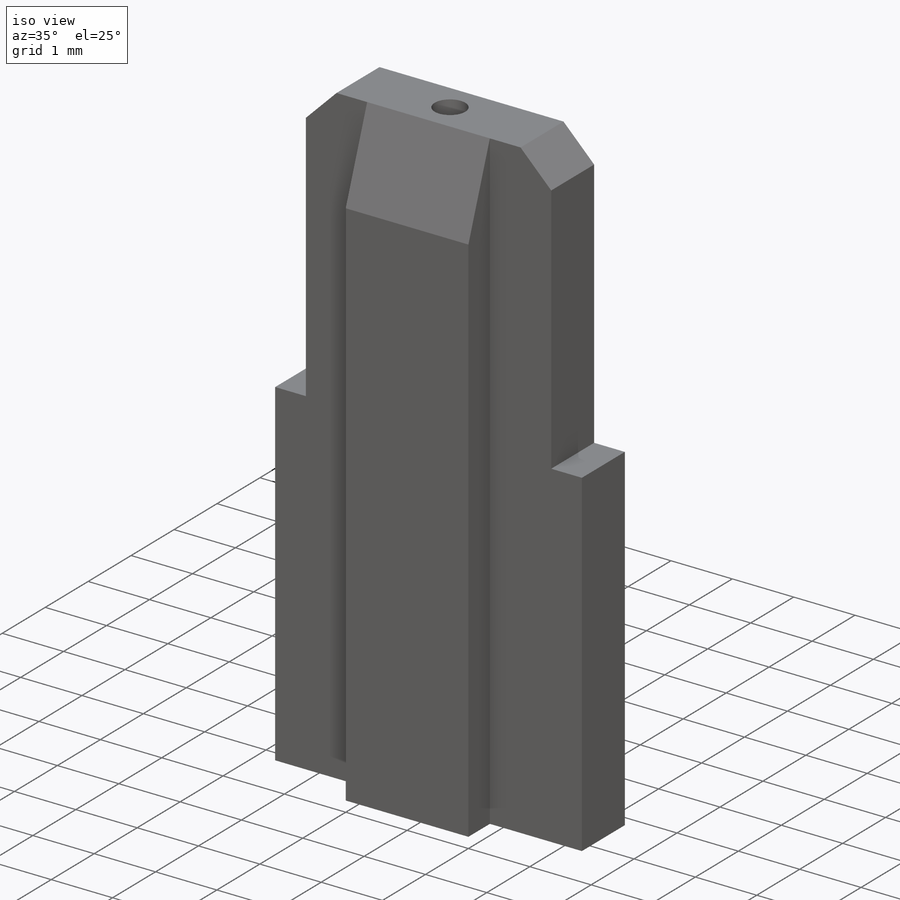
[diagram: iso view]
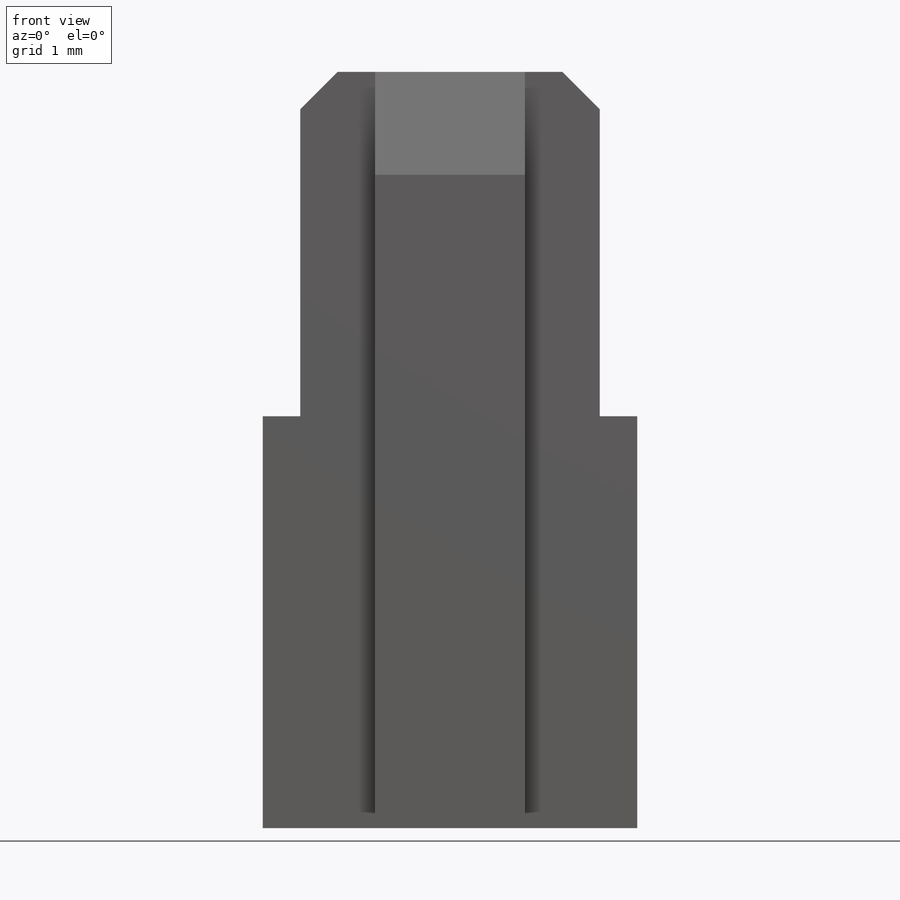
[diagram: front view]
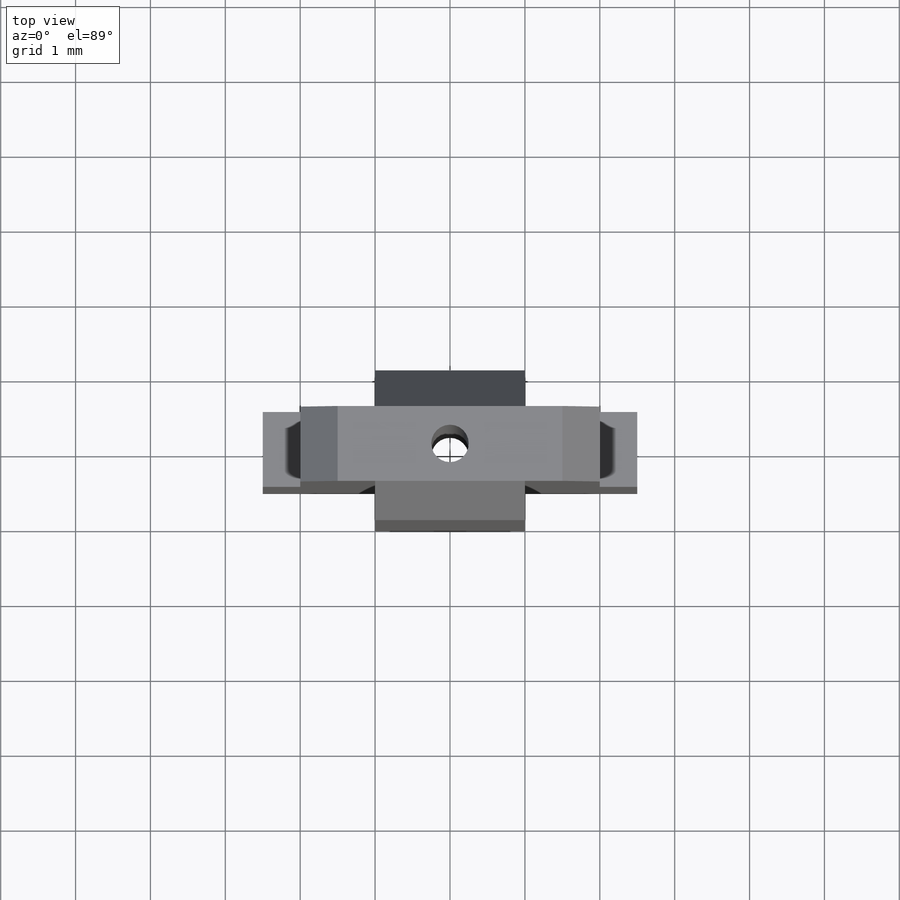
[diagram: top view]
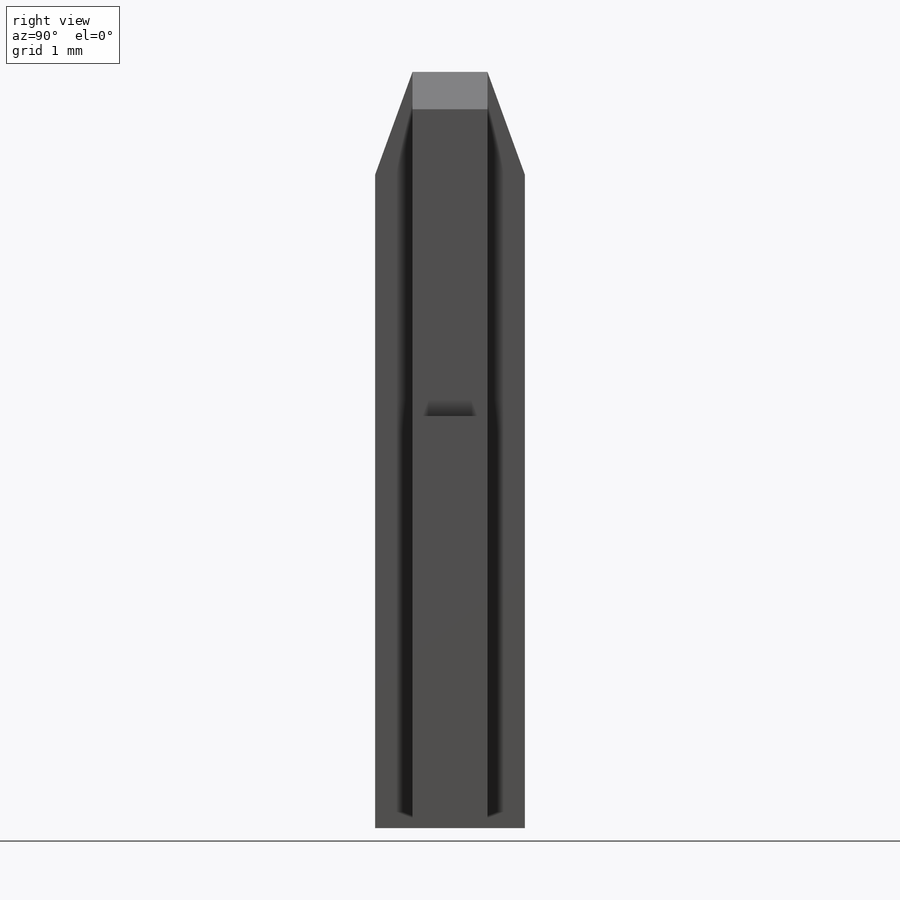
[diagram: right view]
SOLIDWORKS PART (.sldprt)
format: sldprt  version: not decoded by parser v0  size: 214,528 bytes
history: native  units: mm
features: sketch x4, chamfer x4, plane x3, extrude x3, material x1, cut_extrude x1 (+10 scaffold rows collapsed)
feature tree (26):
  scaffold x10  (default folders/planes/origin — collapsed)
  material  "Nylon 101"
  plane  "Ebene vorne"
  plane  "Ebene oben"
  plane  "Ebene rechts"
  sketch  "Skizze1"  dims[c1.D1=~37.116674mm c1.D2=~15.536388mm c2.D1=5.5mm c2.D2=5.0mm c2.D3=4.0mm c2.D4=2.0mm c2.D5=4.6mm c2.D6=0.5mm]
  extrude  "Aufsatz-Linear austragen1"  Depth=1mm
  sketch  "Skizze2"  dims[c1.D1=~11.211653mm c1.D2=~1.765567mm c2.D1=2.0mm c2.D2=10.1mm c2.D3=2.0mm]
  extrude  "Aufsatz-Linear austragen2"  Depth=0.5mm
  chamfer  "Fase1"  Distance=0.5mm Angle=70deg
  sketch  "Skizze3"  dims[c1.D1=~12.388721mm c1.D2=~2.550289mm c2.D1=10.1mm c2.D2=2.0mm c2.D3=2.5mm]
  extrude  "Aufsatz-Linear austragen3"  Depth=0.5mm
  chamfer  "Fase3"  Distance=0.5mm Angle=70deg
  chamfer  "Fase4"  Distance=0.5mm Angle=45deg
  chamfer  "Fase5"  Distance=0.5mm Angle=45deg
  sketch  "Skizze4"  dims[D1=0.5mm]
  cut_extrude  "Schnitt-Linear austragen1"  [1 undecoded]
decode coverage: 11 of 12 modeling features carry decoded parameters
note: ~ marks probable driven/reference dimensions
note: 1 parameter value undecoded
note: suppression state not decoded; provenance and decode notes live in map.json
